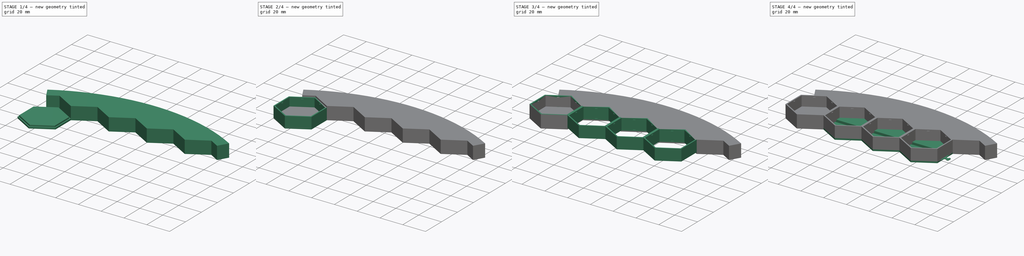
[diagram: build sequence overview — one tinted view per stage of 4, left to right]
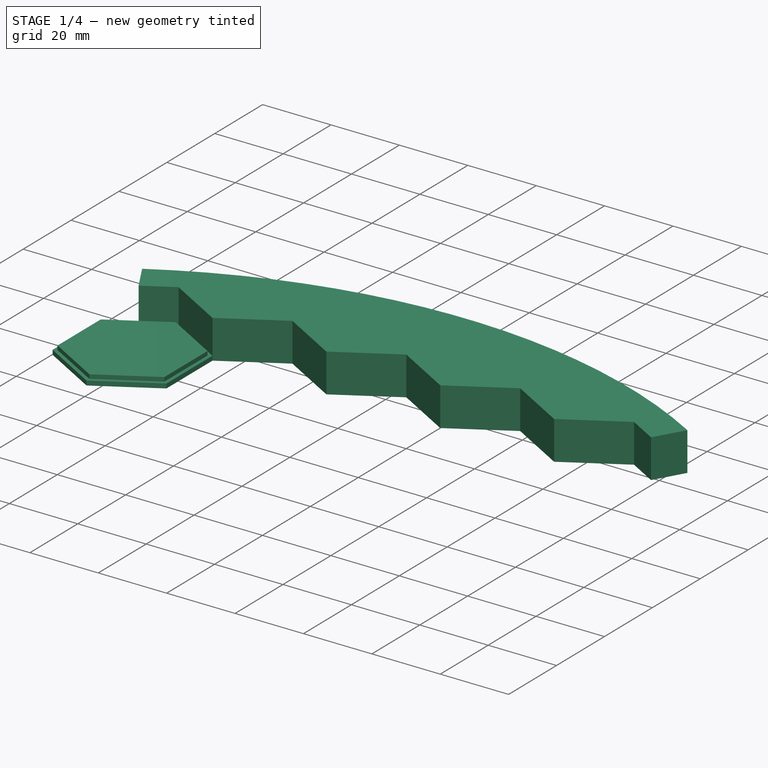
[diagram: stage 1 of 4 — iso view after this stage's code; geometry added in this stage tinted green]
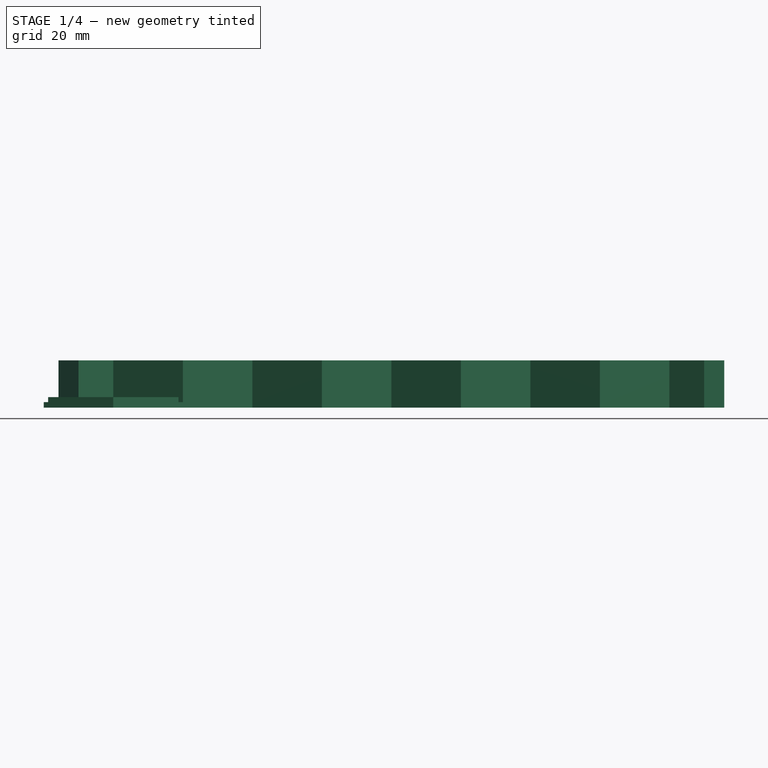
[diagram: stage 1 of 4 — front view after this stage's code; geometry added in this stage tinted green]
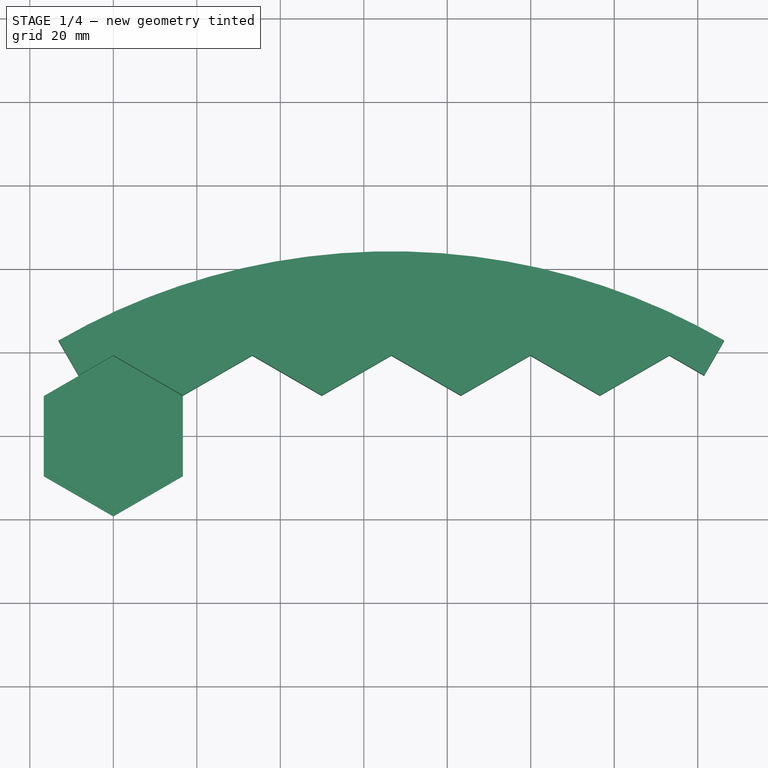
[diagram: stage 1 of 4 — top view after this stage's code; geometry added in this stage tinted green]
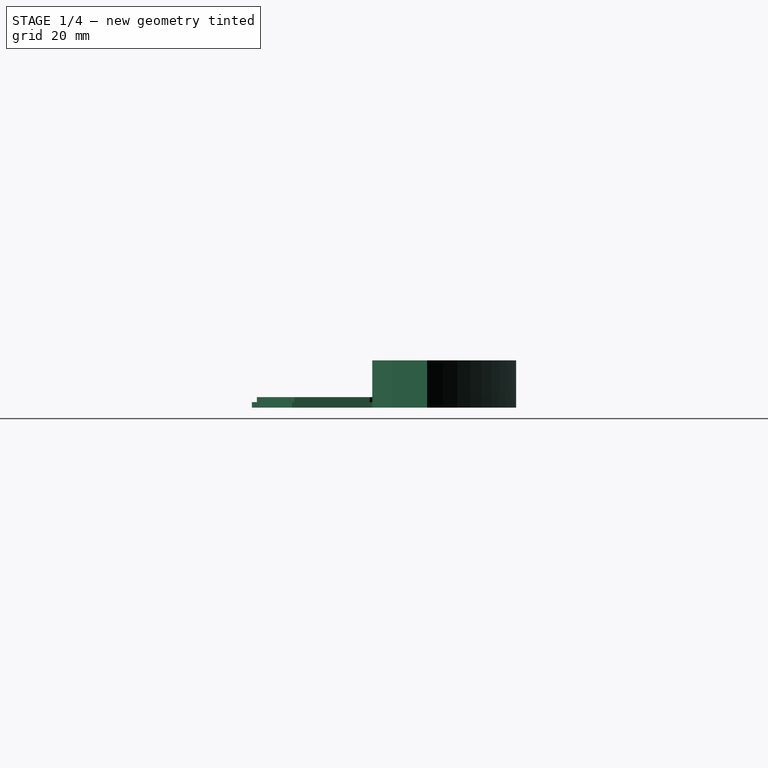
[diagram: stage 1 of 4 — right view after this stage's code; geometry added in this stage tinted green]
FCSTD DOCUMENT  (FreeCAD 0.19R24291 (Git))
Label: HexBoard
License: All rights reserved
LicenseURL: http://en.wikipedia.org/wiki/All_rights_reserved
objects: Sketcher::SketchObject×11, PartDesign::Pad×5, PartDesign::Plane×5, PartDesign::Pocket×5, PartDesign::Body×4, App::Part×3, Part::FeaturePython×2, Spreadsheet::Sheet×1, PartDesign::PolarPattern×1, Part::Feature×1
note: 42 computed .brp shape members not serialized (recipe doc carries the construction recipe); baked Part::Feature solids carry a one-line shape summary decoded from their .brp

FEATURE [App::Part] Part  label="Hex"
  Group = -> [Body,Array001]
  Origin = -> Origin
FEATURE [Sketcher::SketchObject] Sketch008
  FullyConstrained = true
  MapMode = 5
  Support = -> [XY_Plane004]
  expr: Constraints[19] = Spreadsheet.hex_diameter
  sketch-geometry (7):
    g0: LineSegment StartX=0 StartY=19.2258 StartZ=0 EndX=-16.65 EndY=9.61288 EndZ=0
    g1: LineSegment StartX=-16.65 StartY=9.61288 StartZ=0 EndX=-16.65 EndY=-9.61288 EndZ=0
    g2: LineSegment StartX=-16.65 StartY=-9.61288 StartZ=0 EndX=0 EndY=-19.2258 EndZ=0
    g3: LineSegment StartX=0 StartY=-19.2258 StartZ=0 EndX=16.65 EndY=-9.61288 EndZ=0
    g4: LineSegment StartX=16.65 StartY=-9.61288 StartZ=0 EndX=16.65 EndY=9.61288 EndZ=0
    g5: LineSegment StartX=16.65 StartY=9.61288 StartZ=0 EndX=0 EndY=19.2258 EndZ=0
    g6: Circle CenterX=0 CenterY=0 CenterZ=0 NormalX=0 NormalY=0 NormalZ=1 AngleXU=0 Radius=19.2258
  constraints (16):
    c: Coincident(g0,g1)
    c: Coincident(g1,g2)
    c: Coincident(g2,g3)
    c: Coincident(g3,g4)
    c: Coincident(g4,g5)
    c: Coincident(g5,g0)
    c: Equal(g0, g1-g5) x5
    c: PointOnObject(g0,g6)
    c: PointOnObject(g1,g6)
    c: PointOnObject(g2,g6)
    c: PointOnObject(g3,g6)
    c: PointOnObject(g4,g6)
    c: PointOnObject(g5,g6)
    c: Coincident(g6,g-1)
    c: PointOnObject(g5,g-2)
    c: Diameter(g6) = 38.4515
FEATURE [PartDesign::Pad] Pad004
  Direction = (1,1,1)
  Length = 2.5
  Length2 = 100
  Profile = -> Sketch008
  Type = 0
  expr: Length = Spreadsheet.base_thickness
FEATURE [PartDesign::Plane] DatumPlane004
  Length = 60
  MapMode = 5
  Placement = pos=(0,0,2.5) rot=(0,0,1;0rad)
  ResizeMode = 0
  Support = -> [Pad004]
  Width = 60
FEATURE [Sketcher::SketchObject] Sketch009
  FullyConstrained = true
  MapMode = 5
  Placement = pos=(0,0,2.5) rot=(0,0,1;0rad)
  Support = -> [DatumPlane004]
  expr: Constraints[41] = Spreadsheet.hex_diameter - 2 * Spreadsheet.wall_thickness
  expr: Constraints[21] = Spreadsheet.hex_diameter
  sketch-geometry (16):
    g0: LineSegment StartX=0 StartY=-19.2258 StartZ=0 EndX=16.65 EndY=-9.61288 EndZ=0
    g1: LineSegment StartX=16.65 StartY=-9.61288 StartZ=0 EndX=16.65 EndY=9.61288 EndZ=0
    g2: LineSegment StartX=16.65 StartY=9.61288 StartZ=0 EndX=0 EndY=19.2258 EndZ=0
    g3: LineSegment StartX=0 StartY=19.2258 StartZ=0 EndX=-16.65 EndY=9.61288 EndZ=0
    g4: LineSegment StartX=-16.65 StartY=9.61288 StartZ=0 EndX=-16.65 EndY=-9.61288 EndZ=0
    g5: LineSegment StartX=-16.65 StartY=-9.61288 StartZ=0 EndX=0 EndY=-19.2258 EndZ=0
    g6: Circle CenterX=0 CenterY=0 CenterZ=0 NormalX=0 NormalY=0 NormalZ=1 AngleXU=0 Radius=19.2258
    g7: GeomPoint X=0 Y=0 Z=0
    g8: GeomPoint X=0 Y=0 Z=0
    g9: LineSegment StartX=-15.6108 StartY=-9.01288 StartZ=0 EndX=-1.8e-15 EndY=-18.0258 EndZ=0
    g10: LineSegment StartX=-1.8e-15 StartY=-18.0258 StartZ=0 EndX=15.6108 EndY=-9.01288 EndZ=0
    g11: LineSegment StartX=15.6108 StartY=-9.01288 StartZ=0 EndX=15.6108 EndY=9.01288 EndZ=0
    g12: LineSegment StartX=15.6108 StartY=9.01288 StartZ=0 EndX=0 EndY=18.0258 EndZ=0
    g13: LineSegment StartX=0 StartY=18.0258 StartZ=0 EndX=-15.6108 EndY=9.01288 EndZ=0
    g14: LineSegment StartX=-15.6108 StartY=9.01288 StartZ=0 EndX=-15.6108 EndY=-9.01288 EndZ=0
    g15: Circle CenterX=0 CenterY=0 CenterZ=0 NormalX=0 NormalY=0 NormalZ=1 AngleXU=0 Radius=18.0258
  constraints (34):
    c: Coincident(g0,g1)
    c: Coincident(g1,g2)
    c: Coincident(g2,g3)
    c: Coincident(g3,g4)
    c: Coincident(g4,g5)
    c: Coincident(g5,g0)
    c: Equal(g0, g1-g5) x5
    c: PointOnObject(g0,g6)
    c: PointOnObject(g1,g6)
    c: PointOnObject(g2,g6)
    c: PointOnObject(g3,g6)
    c: PointOnObject(g4,g6)
    c: PointOnObject(g5,g6)
    c: Coincident(g7,g6)
    c: Coincident(g8,g-1)
    c: Coincident(g6,g-1)
    c: PointOnObject(g2,g-2)
    c: Diameter(g6) = 38.4515
    c: Coincident(g9,g10)
    c: Coincident(g10,g11)
    c: Coincident(g11,g12)
    c: Coincident(g12,g13)
    c: Coincident(g13,g14)
    c: Coincident(g14,g9)
    c: Equal(g9, g10-g14) x5
    c: PointOnObject(g9,g15)
    c: PointOnObject(g10,g15)
    c: PointOnObject(g11,g15)
    c: PointOnObject(g12,g15)
    c: PointOnObject(g13,g15)
    c: PointOnObject(g14,g15)
    c: Coincident(g15,g-1)
    c: PointOnObject(g12,g-2)
    c: Diameter(g15) = 36.0515
FEATURE [PartDesign::Pocket] Pocket004
  BaseFeature = -> Pad004
  Length = 1.2
  Length2 = 100
  Profile = -> Sketch009
  Type = 0
  expr: Length = Spreadsheet.wall_thickness
FEATURE [PartDesign::Body] Body002  label="Lid"
  Group = -> [Sketch008,Pad004,DatumPlane004,Sketch009,Pocket004]
  Origin = -> Origin004
  Placement = pos=(0,0,12.5) rot=(1,0,0;3.14159rad)
  Tip = -> Pocket004
  expr: .Placement.Base.z = Spreadsheet.hex_height + Spreadsheet.base_thickness
FEATURE [Sketcher::SketchObject] Sketch010
  FullyConstrained = true
  MapMode = 5
  Support = -> [XY_Plane006]
  expr: Constraints[30] = Spreadsheet.hex_diameter / 2
  expr: Constraints[32] = Spreadsheet.hex_diameter / 4
  expr: Constraints[23] = Spreadsheet.hex_diameter / 2
  expr: Constraints[16] = Spreadsheet.hex_diameter / 4
  expr: Constraints[15] = Spreadsheet.hex_diameter / 2
  sketch-geometry (13):
    g0: LineSegment StartX=-8.325 StartY=14.4193 StartZ=0 EndX=0 EndY=19.2258 EndZ=0
    g1: LineSegment StartX=0 StartY=19.2258 StartZ=0 EndX=16.65 EndY=9.61288 EndZ=0
    g2: LineSegment StartX=16.65 StartY=9.61288 StartZ=0 EndX=33.3 EndY=19.2258 EndZ=0
    g3: LineSegment StartX=33.3 StartY=19.2258 StartZ=0 EndX=49.95 EndY=9.61288 EndZ=0
    g4: LineSegment StartX=49.95 StartY=9.61288 StartZ=0 EndX=66.6 EndY=19.2258 EndZ=0
    g5: LineSegment StartX=66.6 StartY=19.2258 StartZ=0 EndX=83.25 EndY=9.61288 EndZ=0
    g6: LineSegment StartX=83.25 StartY=9.61288 StartZ=0 EndX=99.9 EndY=19.2258 EndZ=0
    g7: LineSegment StartX=99.9 StartY=19.2258 StartZ=0 EndX=116.55 EndY=9.61288 EndZ=0
    g8: ArcOfCircle CenterX=66.6 CenterY=-115.355 CenterZ=0 NormalX=0 NormalY=0 NormalZ=1 AngleXU=0 Radius=159.463 StartAngle=1.0472 EndAngle=2.0944
    g9: LineSegment StartX=116.55 StartY=9.61288 StartZ=0 EndX=133.2 EndY=19.2258 EndZ=0
    g10: LineSegment StartX=133.2 StartY=19.2258 StartZ=0 EndX=141.525 EndY=14.4193 EndZ=0
    g11: LineSegment StartX=-8.325 StartY=14.4193 StartZ=0 EndX=-13.1314 EndY=22.7443 EndZ=0
    g12: LineSegment StartX=141.525 StartY=14.4193 StartZ=0 EndX=146.331 EndY=22.7443 EndZ=0
  constraints (40):
    c: PointOnObject(g0,g-2)
    c: Coincident(g0,g1)
    c: Coincident(g1,g2)
    c: Coincident(g2,g3)
    c: Coincident(g3,g4)
    c: Coincident(g4,g5)
    c: Coincident(g5,g6)
    c: Coincident(g6,g7)
    c: Angle(g0,g1) = 2.0944
    c: Angle(g2,g1) = 2.0944
    c: Angle(g2,g3) = 2.0944
    c: Angle(g4,g3) = 2.0944
    c: Angle(g4,g5) = 2.0944
    c: Angle(g6,g5) = 2.0944
    c: Angle(g6,g7) = 2.0944
    c: DistanceY(g-1,g0) = 19.2258
    c: Distance(g0,g0) = 9.61288
    c: Equal(g1,g2)
    c: Equal(g2,g3)
    c: Equal(g3,g4)
    c: Equal(g4,g5)
    c: Equal(g5,g6)
    c: Equal(g6,g7)
    c: DistanceY(g-1,g6) = 19.2258
    c: Coincident(g9,g7)
    c: Angle(g9,g7) = 2.0944
    c: Equal(g7,g9)
    c: Coincident(g10,g9)
    c: Angle(g9,g10) = 2.0944
    c: Angle(g8) = 1.0472
    c: Distance(g1) = 19.2258
    c: Coincident(g11,g0)
    c: Distance(g11) = 9.61288
    c: Perpendicular(g0,g11)
    c: Coincident(g8,g11)
    c: Equal(g10,g0)
    c: Coincident(g12,g10)
    c: Equal(g12,g11)
    c: Perpendicular(g10,g12)
    c: Coincident(g8,g12)
FEATURE [PartDesign::Pad] Pad005
  Direction = (1,1,1)
  Length = 11.3
  Length2 = 100
  Profile = -> Sketch010
  Type = 0
  expr: Length = Spreadsheet.hex_height + Spreadsheet.base_thickness - Spreadsheet.wall_thickness
FEATURE [Part::Feature] Offset001
  shape: bbox 156.2 x 31.91 x 2e-07 mm, 0 faces, 0 solids (baked)
FEATURE [Sketcher::SketchObject] Sketch011
  FullyConstrained = true
  MapMode = 5
  Support = -> [XY_Plane006]
  expr: Constraints[78] = Spreadsheet.hex_diameter / 4
  expr: Constraints[68] = Spreadsheet.wall_thickness
  expr: Constraints[16] = Spreadsheet.hex_diameter / 4
  expr: Constraints[66] = Spreadsheet.wall_thickness
  expr: Constraints[62] = Spreadsheet.wall_thickness
  expr: Constraints[64] = Spreadsheet.wall_thickness
  expr: Constraints[60] = Spreadsheet.wall_thickness
  expr: Constraints[42] = Spreadsheet.wall_thickness
  expr: Constraints[43] = Spreadsheet.hex_diameter / 4
  expr: Constraints[45] = Spreadsheet.wall_thickness
  expr: Constraints[59] = Spreadsheet.wall_thickness
  expr: Constraints[44] = Spreadsheet.wall_thickness
  expr: Constraints[15] = Spreadsheet.hex_diameter / 2
  expr: Constraints[58] = Spreadsheet.wall_thickness
  expr: Constraints[57] = Spreadsheet.wall_thickness
  expr: Constraints[23] = Spreadsheet.hex_diameter / 2
  expr: Constraints[30] = Spreadsheet.hex_diameter / 2
  sketch-geometry (27):
    g0: LineSegment StartX=-8.325 StartY=14.4193 StartZ=0 EndX=0 EndY=19.2258 EndZ=0
    g1: LineSegment StartX=0 StartY=19.2258 StartZ=0 EndX=16.65 EndY=9.61288 EndZ=0
    g2: LineSegment StartX=16.65 StartY=9.61288 StartZ=0 EndX=33.3 EndY=19.2258 EndZ=0
    g3: LineSegment StartX=33.3 StartY=19.2258 StartZ=0 EndX=49.95 EndY=9.61288 EndZ=0
    g4: LineSegment StartX=49.95 StartY=9.61288 StartZ=0 EndX=66.6 EndY=19.2258 EndZ=0
    g5: LineSegment StartX=66.6 StartY=19.2258 StartZ=0 EndX=83.25 EndY=9.61288 EndZ=0
    g6: LineSegment StartX=83.25 StartY=9.61288 StartZ=0 EndX=99.9 EndY=19.2258 EndZ=0
    g7: LineSegment StartX=99.9 StartY=19.2258 StartZ=0 EndX=116.55 EndY=9.61288 EndZ=0
    g8: ArcOfCircle CenterX=64.9829 CenterY=-112.554 CenterZ=0 NormalX=0 NormalY=0 NormalZ=1 AngleXU=0 Radius=156.229 StartAngle=1.0472 EndAngle=2.0944
    g9: LineSegment StartX=116.55 StartY=9.61288 StartZ=0 EndX=133.2 EndY=19.2258 EndZ=0
    g10: LineSegment StartX=133.2 StartY=19.2258 StartZ=0 EndX=141.525 EndY=14.4193 EndZ=0
    g11: LineSegment StartX=-8.925 StartY=15.4586 StartZ=0 EndX=0 EndY=20.4258 EndZ=0
    g12: LineSegment StartX=0 StartY=20.4258 StartZ=0 EndX=16.65 EndY=10.8129 EndZ=0
    g13: LineSegment StartX=16.65 StartY=10.8129 StartZ=0 EndX=33.3 EndY=20.4258 EndZ=0
    g14: LineSegment StartX=33.3 StartY=20.4258 StartZ=0 EndX=49.95 EndY=10.8129 EndZ=0
    g15: LineSegment StartX=49.95 StartY=10.8129 StartZ=0 EndX=66.6 EndY=20.4258 EndZ=0
    g16: LineSegment StartX=66.6 StartY=20.4258 StartZ=0 EndX=83.25 EndY=10.8129 EndZ=0
    g17: LineSegment StartX=83.25 StartY=10.8129 StartZ=0 EndX=99.9 EndY=20.4258 EndZ=0
    g18: LineSegment StartX=99.9 StartY=20.4258 StartZ=0 EndX=116.55 EndY=10.8129 EndZ=0
    g19: LineSegment StartX=116.55 StartY=10.8129 StartZ=0 EndX=133.2 EndY=20.4258 EndZ=0
    g20: LineSegment StartX=133.2 StartY=20.4258 StartZ=0 EndX=142.045 EndY=15.3193 EndZ=0
    g21: ArcOfCircle CenterX=64.9829 CenterY=-112.554 CenterZ=0 NormalX=0 NormalY=0 NormalZ=1 AngleXU=0 Radius=157.429 StartAngle=1.0472 EndAngle=2.0944
    g22: LineSegment StartX=-13.1314 StartY=22.7443 StartZ=0 EndX=-13.7314 EndY=23.7836 EndZ=0
    g23: LineSegment StartX=-8.925 StartY=15.4586 StartZ=0 EndX=-8.325 EndY=14.4193 EndZ=0
    g24: LineSegment StartX=142.045 StartY=15.3193 StartZ=0 EndX=141.525 EndY=14.4193 EndZ=0
    g25: LineSegment StartX=143.697 StartY=23.7836 StartZ=0 EndX=143.097 EndY=22.7443 EndZ=0
    g26: LineSegment StartX=-13.7314 StartY=23.7836 StartZ=0 EndX=-8.325 EndY=14.4193 EndZ=0
  constraints (82):
    c: PointOnObject(g0,g-2)
    c: Coincident(g0,g1)
    c: Coincident(g1,g2)
    c: Coincident(g2,g3)
    c: Coincident(g3,g4)
    c: Coincident(g4,g5)
    c: Coincident(g5,g6)
    c: Coincident(g6,g7)
    c: Angle(g0,g1) = 2.0944
    c: Angle(g2,g1) = 2.0944
    c: Angle(g2,g3) = 2.0944
    c: Angle(g4,g3) = 2.0944
    c: Angle(g4,g5) = 2.0944
    c: Angle(g6,g5) = 2.0944
    c: Angle(g6,g7) = 2.0944
    c: DistanceY(g-1,g0) = 19.2258
    c: Distance(g0,g0) = 9.61288
    c: Equal(g1,g2)
    c: Equal(g2,g3)
    c: Equal(g3,g4)
    c: Equal(g4,g5)
    c: Equal(g5,g6)
    c: Equal(g6,g7)
    c: DistanceY(g-1,g6) = 19.2258
    c: Coincident(g9,g7)
    c: Angle(g9,g7) = 2.0944
    c: Equal(g7,g9)
    c: Coincident(g10,g9)
    c: Angle(g9,g10) = 2.0944
    c: Angle(g8) = 1.0472
    c: Distance(g1) = 19.2258
    c: Equal(g10,g0)
    c: PointOnObject(g11,g-2)
    c: Coincident(g11,g12)
    c: Coincident(g12,g13)
    c: Coincident(g13,g14)
    c: Coincident(g14,g15)
    c: Coincident(g15,g16)
    c: Coincident(g16,g17)
    c: Coincident(g17,g18)
    c: Coincident(g18,g19)
    c: Coincident(g19,g20)
    c: DistanceY(g0,g11) = 1.2
    c: Distance(g8,g0) = 9.61288
    c: Distance(g21,g8) = 1.2
    c: Distance(g11,g0) = 1.2
    c: Coincident(g22,g8)
    c: Coincident(g22,g21)
    c: Coincident(g23,g11)
    c: Coincident(g23,g0)
    c: Coincident(g24,g20)
    c: Coincident(g24,g10)
    c: Coincident(g25,g21)
    c: Equal(g1,g12)
    c: Equal(g2,g13)
    c: Perpendicular(g0,g23)
    c: Equal(g14,g3)
    c: DistanceY(g1,g12) = 1.2
    c: DistanceY(g2,g13) = 1.2
    c: DistanceY(g3,g14) = 1.2
    c: DistanceY(g4,g15) = 1.2
    c: Equal(g15,g4)
    c: DistanceY(g5,g16) = 1.2
    c: Equal(g16,g5)
    c: DistanceY(g6,g17) = 1.2
    c: Equal(g17,g6)
    c: DistanceY(g7,g18) = 1.2
    c: Equal(g18,g7)
    c: DistanceY(g9,g19) = 1.2
    c: Equal(g19,g9)
    c: Perpendicular(g10,g24)
    c: Perpendicular(g24,g20)
    c: Coincident(g25,g8)
    c: Perpendicular(g21,g25)
    c: Perpendicular(g8,g25)
    c: Parallel(g25,g24)
    c: Perpendicular(g8,g22)
    c: Perpendicular(g21,g22)
    c: Distance(g21,g10) = 9.61288
    c: Coincident(g26,g21)
    c: Coincident(g26,g0)
    c: Perpendicular(g21,g26)
FEATURE [PartDesign::Body] Body003
  Group = -> [Sketch010,Pad005,Sketch011]
  Origin = -> Origin006
  Tip = -> Pad005
FEATURE [App::Part] Part002  label="Border"
  Group = -> [Body003]
  Origin = -> Origin005
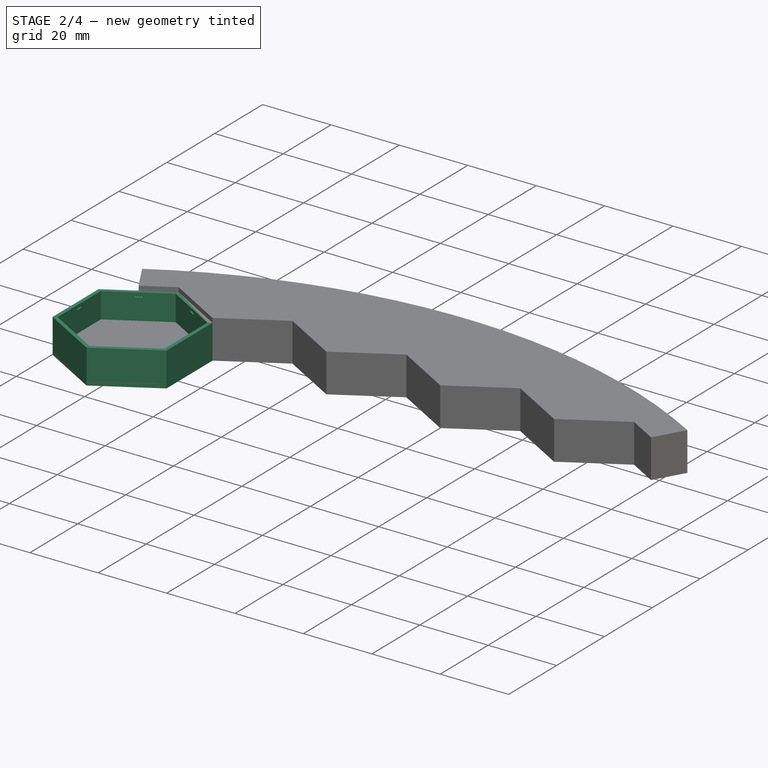
[diagram: stage 2 of 4 — iso view after this stage's code; geometry added in this stage tinted green]
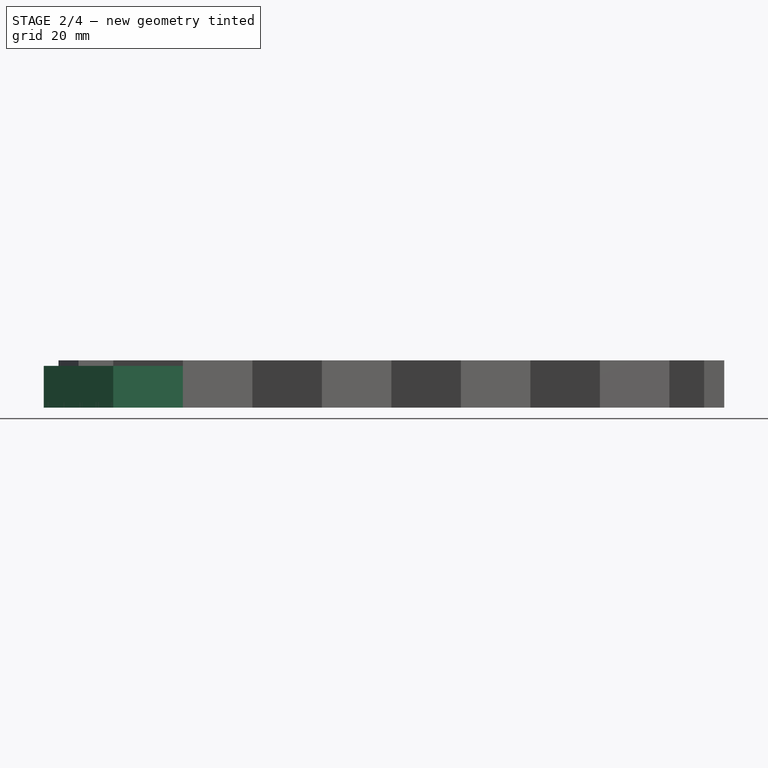
[diagram: stage 2 of 4 — front view after this stage's code; geometry added in this stage tinted green]
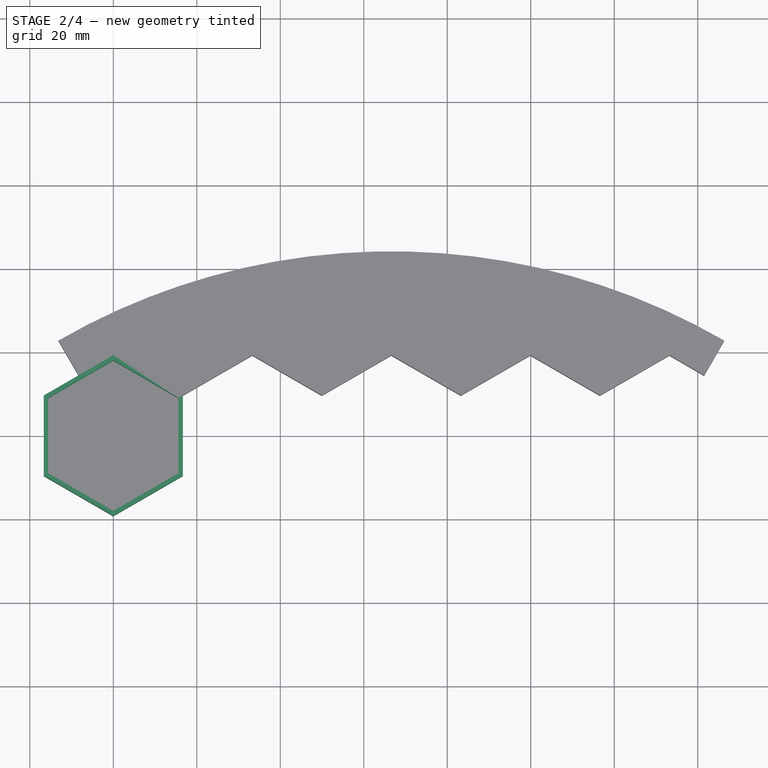
[diagram: stage 2 of 4 — top view after this stage's code; geometry added in this stage tinted green]
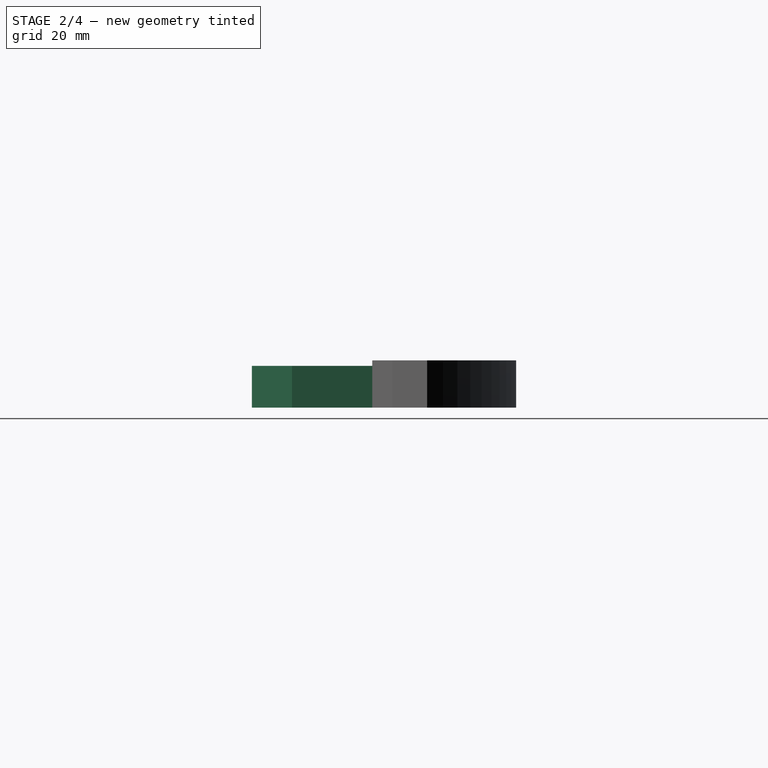
[diagram: stage 2 of 4 — right view after this stage's code; geometry added in this stage tinted green]
FEATURE [Sketcher::SketchObject] Sketch
  FullyConstrained = true
  MapMode = 5
  Support = -> [XY_Plane001]
  expr: Constraints[21] = Spreadsheet.hex_diameter
  expr: Constraints[41] = Spreadsheet.hex_diameter - 2 * Spreadsheet.wall_thickness
  sketch-geometry (16):
    g0: LineSegment StartX=-1.1582e-12 StartY=-19.2258 StartZ=0 EndX=16.65 EndY=-9.61288 EndZ=0
    g1: LineSegment StartX=16.65 StartY=-9.61288 StartZ=0 EndX=16.65 EndY=9.61288 EndZ=0
    g2: LineSegment StartX=16.65 StartY=9.61288 StartZ=0 EndX=0 EndY=19.2258 EndZ=0
    g3: LineSegment StartX=0 StartY=19.2258 StartZ=0 EndX=-16.65 EndY=9.61288 EndZ=0
    g4: LineSegment StartX=-16.65 StartY=9.61288 StartZ=0 EndX=-16.65 EndY=-9.61288 EndZ=0
    g5: LineSegment StartX=-16.65 StartY=-9.61288 StartZ=0 EndX=-1.1582e-12 EndY=-19.2258 EndZ=0
    g6: Circle CenterX=0 CenterY=0 CenterZ=0 NormalX=0 NormalY=0 NormalZ=1 AngleXU=0 Radius=19.2258
    g7: GeomPoint X=0 Y=0 Z=0
    g8: GeomPoint X=0 Y=0 Z=0
    g9: LineSegment StartX=-15.6108 StartY=-9.01288 StartZ=0 EndX=-1.8e-15 EndY=-18.0258 EndZ=0
    g10: LineSegment StartX=-1.8e-15 StartY=-18.0258 StartZ=0 EndX=15.6108 EndY=-9.01288 EndZ=0
    g11: LineSegment StartX=15.6108 StartY=-9.01288 StartZ=0 EndX=15.6108 EndY=9.01288 EndZ=0
    g12: LineSegment StartX=15.6108 StartY=9.01288 StartZ=0 EndX=0 EndY=18.0258 EndZ=0
    g13: LineSegment StartX=0 StartY=18.0258 StartZ=0 EndX=-15.6108 EndY=9.01288 EndZ=0
    g14: LineSegment StartX=-15.6108 StartY=9.01288 StartZ=0 EndX=-15.6108 EndY=-9.01288 EndZ=0
    g15: Circle CenterX=0 CenterY=0 CenterZ=0 NormalX=0 NormalY=0 NormalZ=1 AngleXU=0 Radius=18.0258
  constraints (34):
    c: Coincident(g0,g1)
    c: Coincident(g1,g2)
    c: Coincident(g2,g3)
    c: Coincident(g3,g4)
    c: Coincident(g4,g5)
    c: Coincident(g5,g0)
    c: Equal(g0, g1-g5) x5
    c: PointOnObject(g0,g6)
    c: PointOnObject(g1,g6)
    c: PointOnObject(g2,g6)
    c: PointOnObject(g3,g6)
    c: PointOnObject(g4,g6)
    c: PointOnObject(g5,g6)
    c: Coincident(g7,g6)
    c: Coincident(g8,g-1)
    c: Coincident(g6,g-1)
    c: PointOnObject(g2,g-2)
    c: Diameter(g6) = 38.4515
    c: Coincident(g9,g10)
    c: Coincident(g10,g11)
    c: Coincident(g11,g12)
    c: Coincident(g12,g13)
    c: Coincident(g13,g14)
    c: Coincident(g14,g9)
    c: Equal(g9, g10-g14) x5
    c: PointOnObject(g9,g15)
    c: PointOnObject(g10,g15)
    c: PointOnObject(g11,g15)
    c: PointOnObject(g12,g15)
    c: PointOnObject(g13,g15)
    c: PointOnObject(g14,g15)
    c: Coincident(g15,g-1)
    c: PointOnObject(g12,g-2)
    c: Diameter(g15) = 36.0515
FEATURE [PartDesign::Pad] Pad
  Direction = (1,1,1)
  Length = 10
  Length2 = 100
  Profile = -> Sketch
  Type = 0
  expr: Length = Spreadsheet.hex_height
FEATURE [PartDesign::Body] Body001
  Group = -> [Sketch001,Pad001,DatumPlane,Sketch002,Pocket,Sketch003,DatumPlane001,Pocket001,DatumPlane002,Sketch005,Sketch006,Pocket002,Pad003]
  Origin = -> Origin003
  Tip = -> Pad003
FEATURE [App::Part] Part001  label="Base"
  Group = -> [Body001]
  Origin = -> Origin002
FEATURE [PartDesign::Plane] DatumPlane003
  Length = 60
  MapMode = 5
  Placement = pos=(-15.6108,3.1e-15,0) rot=(0.57735,0.57735,0.57735;2.0944rad)
  ResizeMode = 0
  Support = -> [Pad]
  Width = 60
FEATURE [Sketcher::SketchObject] Sketch007
  FullyConstrained = false
  MapMode = 5
  Placement = pos=(-15.6108,3.1e-15,0) rot=(0.57735,0.57735,0.57735;2.0944rad)
  Support = -> [DatumPlane003]
  expr: Constraints[16] = Spreadsheet.nib_width
  expr: Constraints[18] = Spreadsheet.nib_width
  expr: Constraints[17] = Spreadsheet.nib_height
  expr: Constraints[19] = Spreadsheet.nib_height
  expr: Constraints[20] = Spreadsheet.base_thickness - Spreadsheet.wall_thickness
  expr: Constraints[21] = Spreadsheet.hex_height - Spreadsheet.base_thickness + Spreadsheet.wall_thickness
  sketch-geometry (8):
    g0: LineSegment StartX=-0.950022 StartY=1.3 StartZ=0 EndX=1.04998 EndY=1.3 EndZ=0
    g1: LineSegment StartX=1.04998 StartY=1.3 StartZ=0 EndX=1.04998 EndY=0.8 EndZ=0
    g2: LineSegment StartX=1.04998 StartY=0.8 StartZ=0 EndX=-0.950022 EndY=0.8 EndZ=0
    g3: LineSegment StartX=-0.950022 StartY=0.8 StartZ=0 EndX=-0.950022 EndY=1.3 EndZ=0
    g4: LineSegment StartX=-0.941223 StartY=9.2 StartZ=0 EndX=1.05878 EndY=9.2 EndZ=0
    g5: LineSegment StartX=1.05878 StartY=9.2 StartZ=0 EndX=1.05878 EndY=8.7 EndZ=0
    g6: LineSegment StartX=1.05878 StartY=8.7 StartZ=0 EndX=-0.941223 EndY=8.7 EndZ=0
    g7: LineSegment StartX=-0.941223 StartY=8.7 StartZ=0 EndX=-0.941223 EndY=9.2 EndZ=0
  constraints (22):
    c: Coincident(g0,g1)
    c: Coincident(g1,g2)
    c: Coincident(g2,g3)
    c: Coincident(g3,g0)
    c: Horizontal(g0)
    c: Horizontal(g2)
    c: Vertical(g1)
    c: Vertical(g3)
    c: Coincident(g4,g5)
    c: Coincident(g5,g6)
    c: Coincident(g6,g7)
    c: Coincident(g7,g4)
    c: Horizontal(g4)
    c: Horizontal(g6)
    c: Vertical(g5)
    c: Vertical(g7)
    c: DistanceX(g4,g4) = 2
    c: DistanceY(g7,g7) = 0.5
    c: DistanceX(g0,g0) = 2
    c: DistanceY(g3,g3) = 0.5
    c: DistanceY(g-1,g0) = 1.3
    c: DistanceY(g-1,g5) = 8.7
FEATURE [PartDesign::Pocket] Pocket003
  BaseFeature = -> Pad
  Length = 0.5
  Length2 = 100
  Profile = -> Sketch007
  Type = 0
  expr: Length = Spreadsheet.nib_depth
FEATURE [PartDesign::PolarPattern] PolarPattern001
  Angle = 360
  Axis = -> Z_Axis001
  BaseFeature = -> Pocket003
  Occurrences = 6
  Originals = -> [Pocket003]
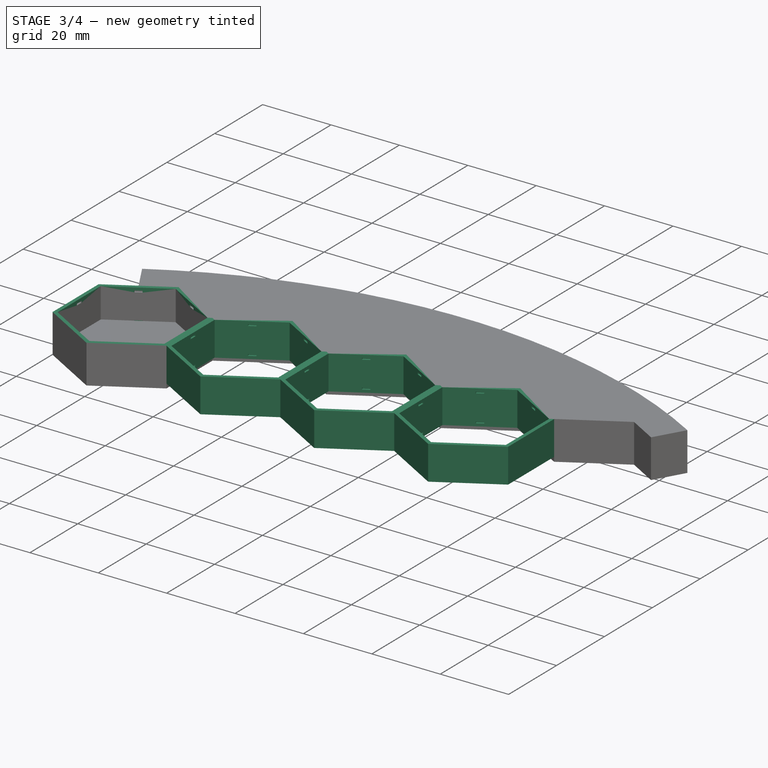
[diagram: stage 3 of 4 — iso view after this stage's code; geometry added in this stage tinted green]
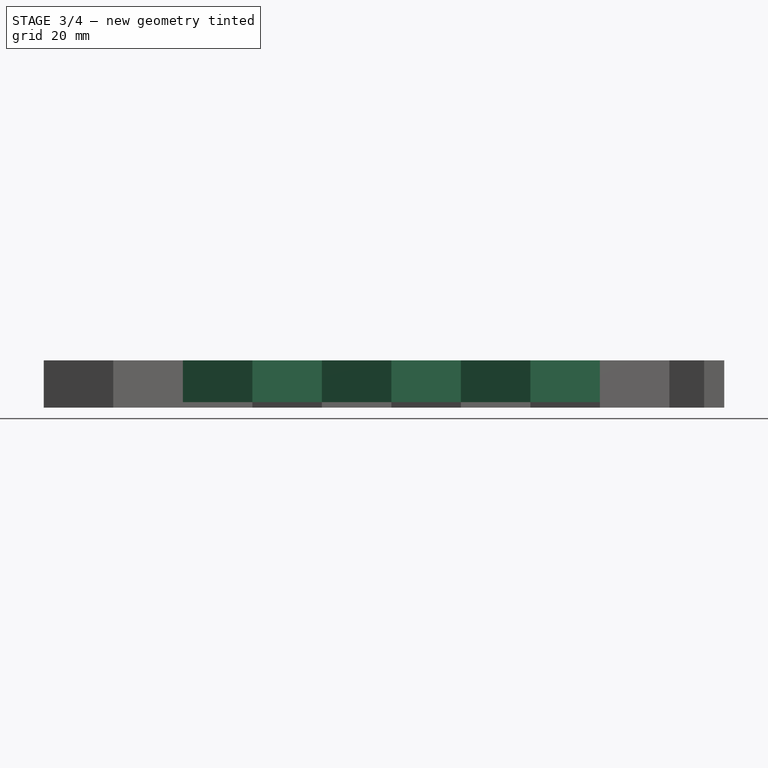
[diagram: stage 3 of 4 — front view after this stage's code; geometry added in this stage tinted green]
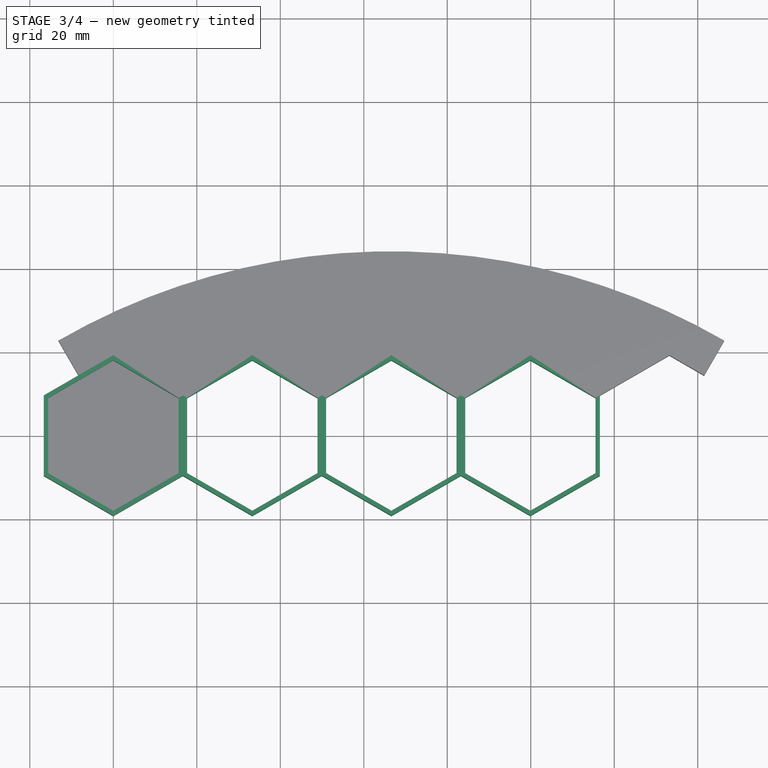
[diagram: stage 3 of 4 — top view after this stage's code; geometry added in this stage tinted green]
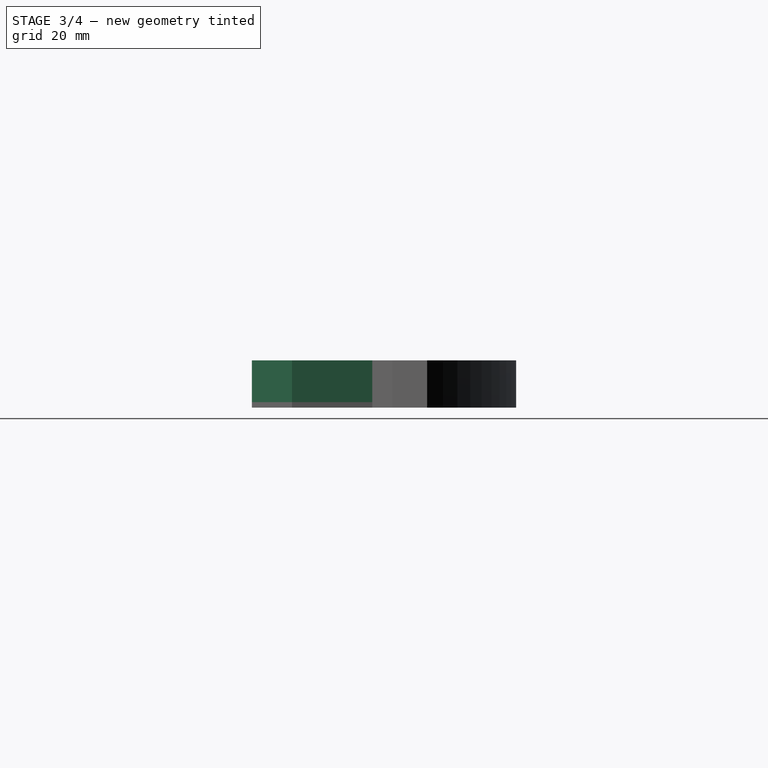
[diagram: stage 3 of 4 — right view after this stage's code; geometry added in this stage tinted green]
FEATURE [Spreadsheet::Sheet] Spreadsheet
  cells = A1=Name; B1=Value; C1=Notes; A3=hex_apothem; B3(hex_apothem)=33.3; A4=hex_diameter; B4(hex_diameter)==2 * hex_apothem / sqrt(3); A5=hex_height; B5(hex_height)=10; A6=wall_thickness; B6(wall_thickness)=1.2; A7=led_width; B7(led_width)=10; A8=led_height; B8(led_height)=2; A9=base_thickness; B9(base_thickness)=2.5; A10=nib_width; B10(nib_width)=2; A11=nib_height; B11(nib_height)=0.5; A12=nib_depth; B12(nib_depth)=0.5
FEATURE [Sketcher::SketchObject] Sketch001
  FullyConstrained = true
  MapMode = 5
  Support = -> [XY_Plane003]
  expr: Constraints[19] = Spreadsheet.hex_diameter
  sketch-geometry (7):
    g0: LineSegment StartX=0 StartY=19.2258 StartZ=0 EndX=-16.65 EndY=9.61288 EndZ=0
    g1: LineSegment StartX=-16.65 StartY=9.61288 StartZ=0 EndX=-16.65 EndY=-9.61288 EndZ=0
    g2: LineSegment StartX=-16.65 StartY=-9.61288 StartZ=0 EndX=0 EndY=-19.2258 EndZ=0
    g3: LineSegment StartX=0 StartY=-19.2258 StartZ=0 EndX=16.65 EndY=-9.61288 EndZ=0
    g4: LineSegment StartX=16.65 StartY=-9.61288 StartZ=0 EndX=16.65 EndY=9.61288 EndZ=0
    g5: LineSegment StartX=16.65 StartY=9.61288 StartZ=0 EndX=0 EndY=19.2258 EndZ=0
    g6: Circle CenterX=0 CenterY=0 CenterZ=0 NormalX=0 NormalY=0 NormalZ=1 AngleXU=0 Radius=19.2258
  constraints (16):
    c: Coincident(g0,g1)
    c: Coincident(g1,g2)
    c: Coincident(g2,g3)
    c: Coincident(g3,g4)
    c: Coincident(g4,g5)
    c: Coincident(g5,g0)
    c: Equal(g0, g1-g5) x5
    c: PointOnObject(g0,g6)
    c: PointOnObject(g1,g6)
    c: PointOnObject(g2,g6)
    c: PointOnObject(g3,g6)
    c: PointOnObject(g4,g6)
    c: PointOnObject(g5,g6)
    c: Coincident(g6,g-1)
    c: PointOnObject(g5,g-2)
    c: Diameter(g6) = 38.4515
FEATURE [PartDesign::Pad] Pad001
  Direction = (1,1,1)
  Length = 2.5
  Length2 = 100
  Profile = -> Sketch001
  Type = 0
  expr: Length = Spreadsheet.base_thickness
FEATURE [PartDesign::Plane] DatumPlane
  Length = 60
  MapMode = 5
  Placement = pos=(0,0,2.5) rot=(0,0,1;0rad)
  ResizeMode = 0
  Support = -> [Pad001]
  Width = 60
FEATURE [Sketcher::SketchObject] Sketch002
  FullyConstrained = true
  MapMode = 5
  Placement = pos=(0,0,2.5) rot=(0,0,1;0rad)
  Support = -> [DatumPlane]
  expr: Constraints[21] = Spreadsheet.hex_diameter
  expr: Constraints[41] = Spreadsheet.hex_diameter - 2 * Spreadsheet.wall_thickness
  sketch-geometry (16):
    g0: LineSegment StartX=0 StartY=-19.2258 StartZ=0 EndX=16.65 EndY=-9.61288 EndZ=0
    g1: LineSegment StartX=16.65 StartY=-9.61288 StartZ=0 EndX=16.65 EndY=9.61288 EndZ=0
    g2: LineSegment StartX=16.65 StartY=9.61288 StartZ=0 EndX=0 EndY=19.2258 EndZ=0
    g3: LineSegment StartX=0 StartY=19.2258 StartZ=0 EndX=-16.65 EndY=9.61288 EndZ=0
    g4: LineSegment StartX=-16.65 StartY=9.61288 StartZ=0 EndX=-16.65 EndY=-9.61288 EndZ=0
    g5: LineSegment StartX=-16.65 StartY=-9.61288 StartZ=0 EndX=0 EndY=-19.2258 EndZ=0
    g6: Circle CenterX=0 CenterY=0 CenterZ=0 NormalX=0 NormalY=0 NormalZ=1 AngleXU=0 Radius=19.2258
    g7: GeomPoint X=0 Y=0 Z=0
    g8: GeomPoint X=0 Y=0 Z=0
    g9: LineSegment StartX=-15.6108 StartY=-9.01288 StartZ=0 EndX=-1.8e-15 EndY=-18.0258 EndZ=0
    g10: LineSegment StartX=-1.8e-15 StartY=-18.0258 StartZ=0 EndX=15.6108 EndY=-9.01288 EndZ=0
    g11: LineSegment StartX=15.6108 StartY=-9.01288 StartZ=0 EndX=15.6108 EndY=9.01288 EndZ=0
    g12: LineSegment StartX=15.6108 StartY=9.01288 StartZ=0 EndX=0 EndY=18.0258 EndZ=0
    g13: LineSegment StartX=0 StartY=18.0258 StartZ=0 EndX=-15.6108 EndY=9.01288 EndZ=0
    g14: LineSegment StartX=-15.6108 StartY=9.01288 StartZ=0 EndX=-15.6108 EndY=-9.01288 EndZ=0
    g15: Circle CenterX=0 CenterY=0 CenterZ=0 NormalX=0 NormalY=0 NormalZ=1 AngleXU=0 Radius=18.0258
  constraints (34):
    c: Coincident(g0,g1)
    c: Coincident(g1,g2)
    c: Coincident(g2,g3)
    c: Coincident(g3,g4)
    c: Coincident(g4,g5)
    c: Coincident(g5,g0)
    c: Equal(g0, g1-g5) x5
    c: PointOnObject(g0,g6)
    c: PointOnObject(g1,g6)
    c: PointOnObject(g2,g6)
    c: PointOnObject(g3,g6)
    c: PointOnObject(g4,g6)
    c: PointOnObject(g5,g6)
    c: Coincident(g7,g6)
    c: Coincident(g8,g-1)
    c: Coincident(g6,g-1)
    c: PointOnObject(g2,g-2)
    c: Diameter(g6) = 38.4515
    c: Coincident(g9,g10)
    c: Coincident(g10,g11)
    c: Coincident(g11,g12)
    c: Coincident(g12,g13)
    c: Coincident(g13,g14)
    c: Coincident(g14,g9)
    c: Equal(g9, g10-g14) x5
    c: PointOnObject(g9,g15)
    c: PointOnObject(g10,g15)
    c: PointOnObject(g11,g15)
    c: PointOnObject(g12,g15)
    c: PointOnObject(g13,g15)
    c: PointOnObject(g14,g15)
    c: Coincident(g15,g-1)
    c: PointOnObject(g12,g-2)
    c: Diameter(g15) = 36.0515
FEATURE [PartDesign::Pocket] Pocket
  BaseFeature = -> Pad001
  Length = 1.2
  Length2 = 100
  Profile = -> Sketch002
  Type = 0
  expr: Length = Spreadsheet.wall_thickness
FEATURE [Sketcher::SketchObject] Sketch003
  FullyConstrained = true
  MapMode = 5
  Placement = pos=(0,0,2.5) rot=(0,0,1;0rad)
  Support = -> [DatumPlane]
  expr: Constraints[6] = Spreadsheet.hex_apothem
  expr: Constraints[7] = Spreadsheet.led_width
  sketch-geometry (4):
    g0: LineSegment StartX=-16.65 StartY=5 StartZ=0 EndX=16.65 EndY=5 EndZ=0
    g1: LineSegment StartX=16.65 StartY=5 StartZ=0 EndX=16.65 EndY=-5 EndZ=0
    g2: LineSegment StartX=16.65 StartY=-5 StartZ=0 EndX=-16.65 EndY=-5 EndZ=0
    g3: LineSegment StartX=-16.65 StartY=-5 StartZ=0 EndX=-16.65 EndY=5 EndZ=0
  constraints (10):
    c: Coincident(g0,g1)
    c: Coincident(g1,g2)
    c: Coincident(g2,g3)
    c: Coincident(g3,g0)
    c: Horizontal(g2)
    c: Vertical(g1)
    c: DistanceX(g0,g0) = 33.3
    c: DistanceY(g3,g3) = 10
    c: Symmetric(g0,g0,g-2)
    c: Symmetric(g0,g2,g-1)
FEATURE [PartDesign::Plane] DatumPlane001
  Length = 79.989
  MapMode = 5
  Placement = pos=(7.80538,-13.5193,0) rot=(0.935113,0.250563,0.250563;1.63783rad)
  ResizeMode = 0
  Width = 61.6877
FEATURE [PartDesign::Pocket] Pocket001
  BaseFeature = -> Pocket
  Length = 2
  Length2 = 100
  Profile = -> Sketch003
  Type = 0
  expr: Length = Spreadsheet.led_height
FEATURE [Part::FeaturePython] Array001  # Draft array (typed FeaturePython)
  Angle = 360
  ArrayType = 0
  Axis = (0,0,1)
  Base = -> Body
  Center = (0,0,0)
  Count = 4
  ExpandArray = false
  Fuse = false
  IntervalAxis = (0,0,0)
  IntervalX = (33.3,0,0)
  IntervalY = (0,100,0)
  IntervalZ = (0,0,100)
  NumberCircles = 3
  NumberPolar = 5
  NumberX = 4
  NumberY = 1
  NumberZ = 1
  PlacementList = 4 placements: arithmetic series from (0,0,1.3) step (33.3,0,0) to (99.9,0,1.3)
  RadialDistance = 50
  ScaleList = (4) [(1,1,1),(1,1,1),(1,1,1),(1,1,1)]
  Symmetry = 1
  TangentialDistance = 25
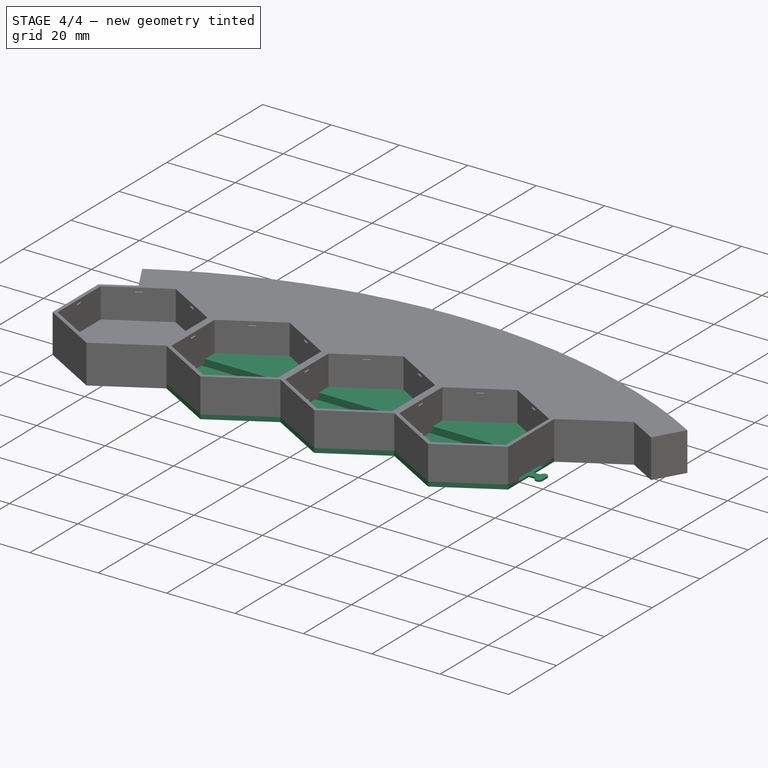
[diagram: stage 4 of 4 — iso view after this stage's code; geometry added in this stage tinted green]
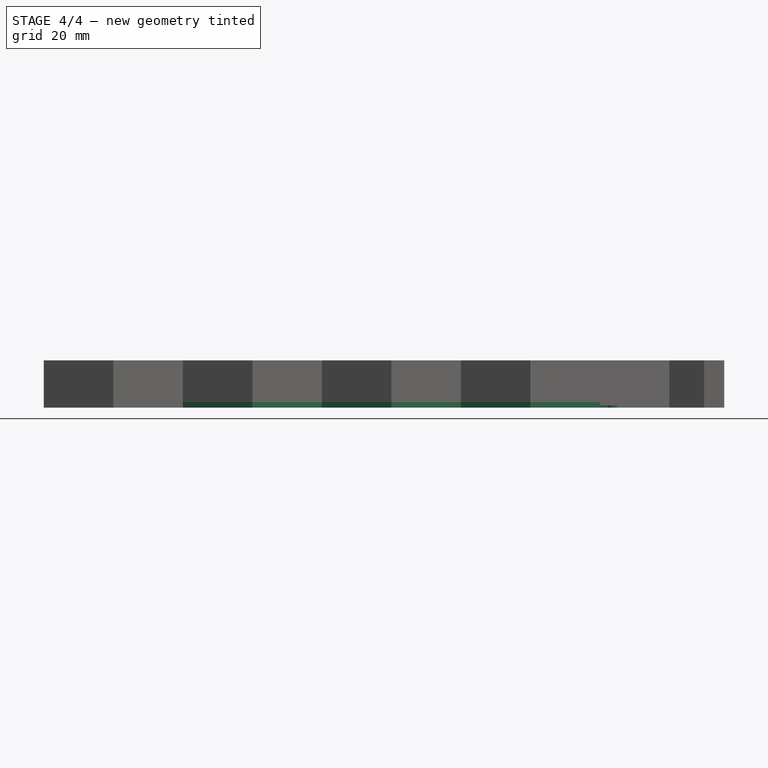
[diagram: stage 4 of 4 — front view after this stage's code; geometry added in this stage tinted green]
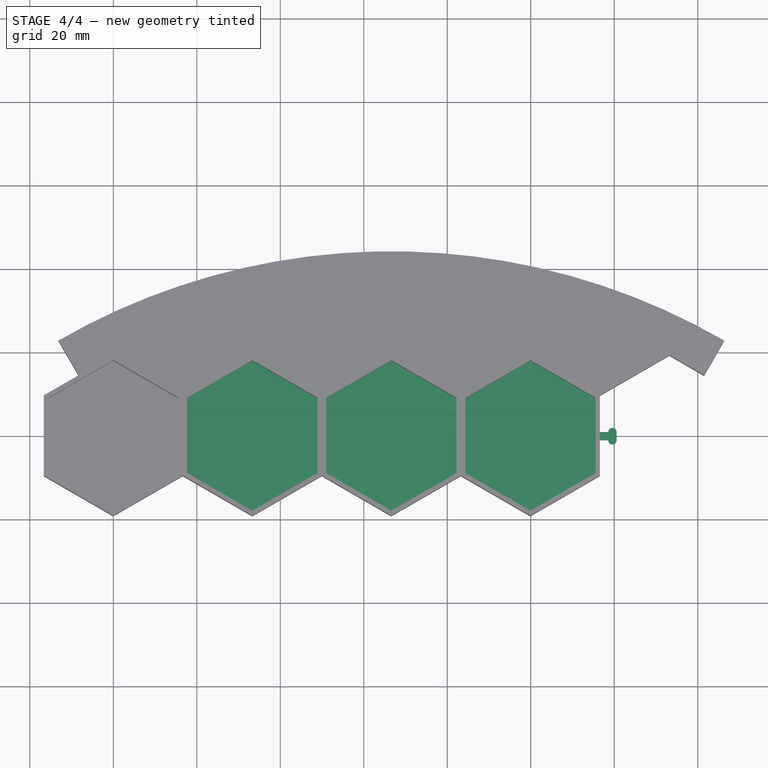
[diagram: stage 4 of 4 — top view after this stage's code; geometry added in this stage tinted green]
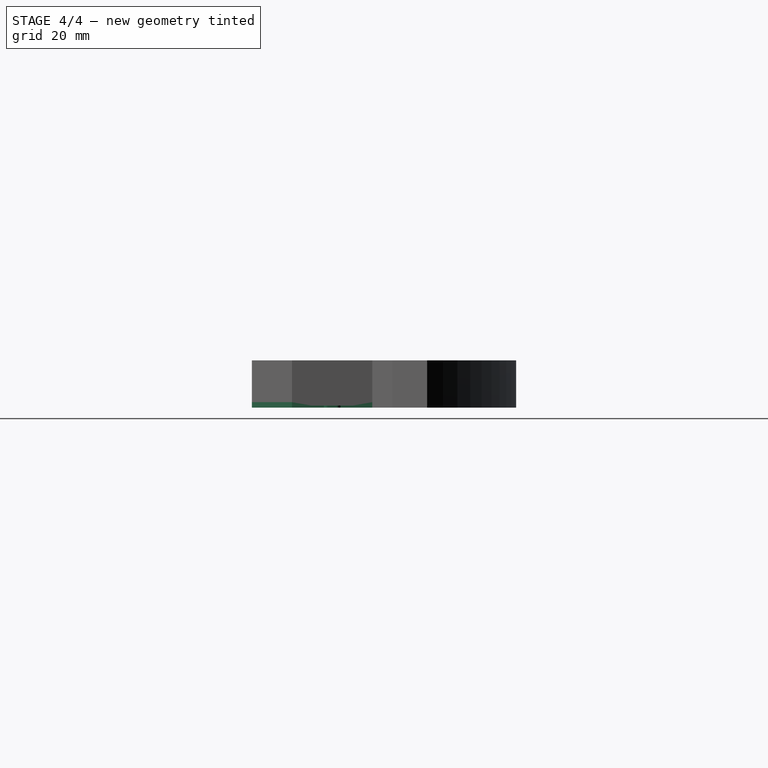
[diagram: stage 4 of 4 — right view after this stage's code; geometry added in this stage tinted green]
FEATURE [PartDesign::Plane] DatumPlane002
  Length = 60
  MapMode = 5
  Placement = pos=(0,0,0.5) rot=(0,0,1;0rad)
  ResizeMode = 0
  Support = -> [Pocket001]
  Width = 60
FEATURE [Sketcher::SketchObject] Sketch005
  FullyConstrained = true
  MapMode = 5
  Placement = pos=(0,0,0.5) rot=(0,0,1;0rad)
  Support = -> [DatumPlane002]
  expr: Constraints[15] = Spreadsheet.hex_apothem / 2
  expr: Constraints[14] = Spreadsheet.nib_width
  expr: Constraints[13] = Spreadsheet.nib_width
  expr: Constraints[12] = Spreadsheet.nib_width
  sketch-geometry (6):
    g0: ArcOfCircle CenterX=-13.65 CenterY=1 CenterZ=0 NormalX=0 NormalY=0 NormalZ=1 AngleXU=0 Radius=1 StartAngle=2e-16 EndAngle=3.14159
    g1: ArcOfCircle CenterX=-13.65 CenterY=-1 CenterZ=0 NormalX=0 NormalY=0 NormalZ=1 AngleXU=0 Radius=1 StartAngle=3.14159 EndAngle=6.28319
    g2: LineSegment StartX=-12.65 StartY=1 StartZ=0 EndX=-12.65 EndY=-1 EndZ=0
    g3: LineSegment StartX=-14.65 StartY=1 StartZ=0 EndX=-16.65 EndY=1 EndZ=0
    g4: LineSegment StartX=-16.65 StartY=1 StartZ=0 EndX=-16.65 EndY=-1 EndZ=0
    g5: LineSegment StartX=-16.65 StartY=-1 StartZ=0 EndX=-14.65 EndY=-1 EndZ=0
  constraints (17):
    c: Tangent(g0,g2) = 1.5708
    c: Tangent(g2,g1) = 1.5708
    c: Equal(g0,g1)
    c: Coincident(g3,g0)
    c: Coincident(g4,g3)
    c: Vertical(g4)
    c: Coincident(g5,g4)
    c: Coincident(g5,g1)
    c: Horizontal(g3)
    c: Horizontal(g5)
    c: Vertical(g1,g0)
    c: Horizontal(g0,g0)
    c: Diameter(g0) = 2
    c: DistanceY(g4,g4) = 2
    c: DistanceX(g3,g3) = 2
    c: DistanceX(g4,g-1) = 16.65
    c: Symmetric(g0,g1,g-1)
FEATURE [Sketcher::SketchObject] Sketch006
  FullyConstrained = true
  MapMode = 5
  Placement = pos=(0,0,0.5) rot=(0,0,1;0rad)
  Support = -> [DatumPlane002]
  expr: Constraints[15] = Spreadsheet.hex_apothem / 2
  expr: Constraints[12] = Spreadsheet.nib_width
  expr: Constraints[11] = Spreadsheet.nib_width
  expr: Constraints[9] = Spreadsheet.nib_width
  sketch-geometry (6):
    g0: ArcOfCircle CenterX=19.65 CenterY=1 CenterZ=0 NormalX=0 NormalY=0 NormalZ=1 AngleXU=0 Radius=1 StartAngle=2e-16 EndAngle=3.14159
    g1: ArcOfCircle CenterX=19.65 CenterY=-1 CenterZ=0 NormalX=0 NormalY=0 NormalZ=1 AngleXU=0 Radius=1 StartAngle=3.14159 EndAngle=6.28319
    g2: LineSegment StartX=20.65 StartY=1 StartZ=0 EndX=20.65 EndY=-1 EndZ=0
    g3: LineSegment StartX=18.65 StartY=1 StartZ=0 EndX=16.65 EndY=1 EndZ=0
    g4: LineSegment StartX=16.65 StartY=-1 StartZ=0 EndX=18.65 EndY=-1 EndZ=0
    g5: LineSegment StartX=16.65 StartY=-1 StartZ=0 EndX=16.65 EndY=1 EndZ=0
  constraints (17):
    c: Tangent(g0,g2) = 1.5708
    c: Tangent(g2,g1) = 1.5708
    c: Equal(g0,g1)
    c: Coincident(g3,g0)
    c: Horizontal(g3)
    c: Coincident(g4,g1)
    c: Coincident(g5,g4)
    c: Coincident(g5,g3)
    c: Vertical(g5)
    c: Diameter(g0) = 2
    c: Horizontal(g4)
    c: DistanceX(g3,g3) = 2
    c: DistanceY(g5,g5) = 2
    c: Horizontal(g1,g1)
    c: Horizontal(g0,g0)
    c: DistanceX(g-1,g4) = 16.65
    c: Symmetric(g0,g1,g-1)
FEATURE [PartDesign::Pocket] Pocket002
  BaseFeature = -> Pocket001
  Length = 5
  Length2 = 100
  Profile = -> Sketch005
  Type = 0
FEATURE [PartDesign::Pad] Pad003
  BaseFeature = -> Pocket002
  Direction = (1,1,1)
  Length = 0.5
  Length2 = 100
  Profile = -> Sketch006
  Reversed = true
  Type = 0
  expr: Length = Spreadsheet.base_thickness - Spreadsheet.led_height
FEATURE [PartDesign::Body] Body
  Group = -> [Sketch,Pad,DatumPlane003,Sketch007,Pocket003,PolarPattern001]
  Origin = -> Origin001
  Placement = pos=(0,0,1.3) rot=(0,0,1;0rad)
  Tip = -> PolarPattern001
  expr: .Placement.Base.z = Spreadsheet.base_thickness - Spreadsheet.wall_thickness
FEATURE [Part::FeaturePython] Array  # Draft array (typed FeaturePython)
  Angle = 360
  ArrayType = 0
  Axis = (0,0,1)
  Base = -> Body001
  Center = (0,0,0)
  Count = 4
  ExpandArray = false
  Fuse = false
  IntervalAxis = (0,0,0)
  IntervalX = (33.3,0,0)
  IntervalY = (0,100,0)
  IntervalZ = (0,0,100)
  NumberCircles = 3
  NumberPolar = 5
  NumberX = 4
  NumberY = 1
  NumberZ = 1
  PlacementList = 4 placements: arithmetic series from (0,0,0) step (33.3,0,0) to (99.9,0,0)
  RadialDistance = 50
  ScaleList = (4) [(1,1,1),(1,1,1),(1,1,1),(1,1,1)]
  Symmetry = 1
  TangentialDistance = 25
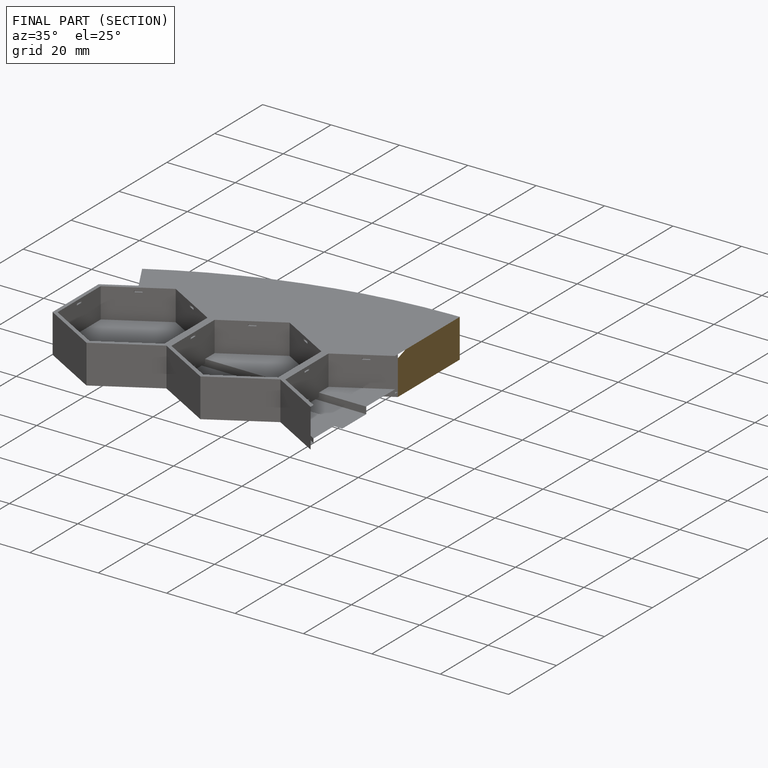
[diagram: finished part — half-section view (interior)]
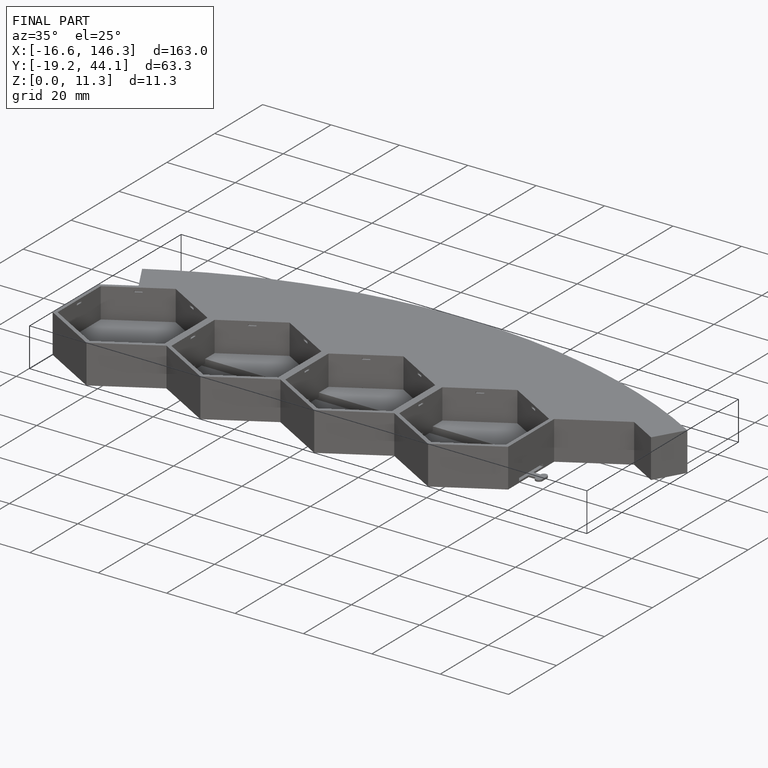
[diagram: finished part — iso view with bounding-box wireframe]
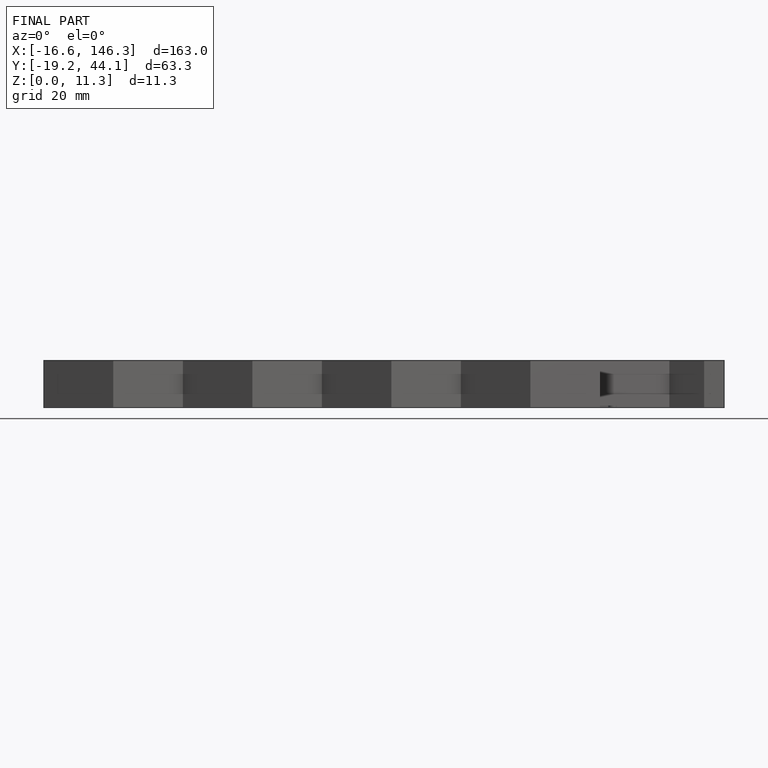
[diagram: finished part — front view with bounding-box wireframe]
